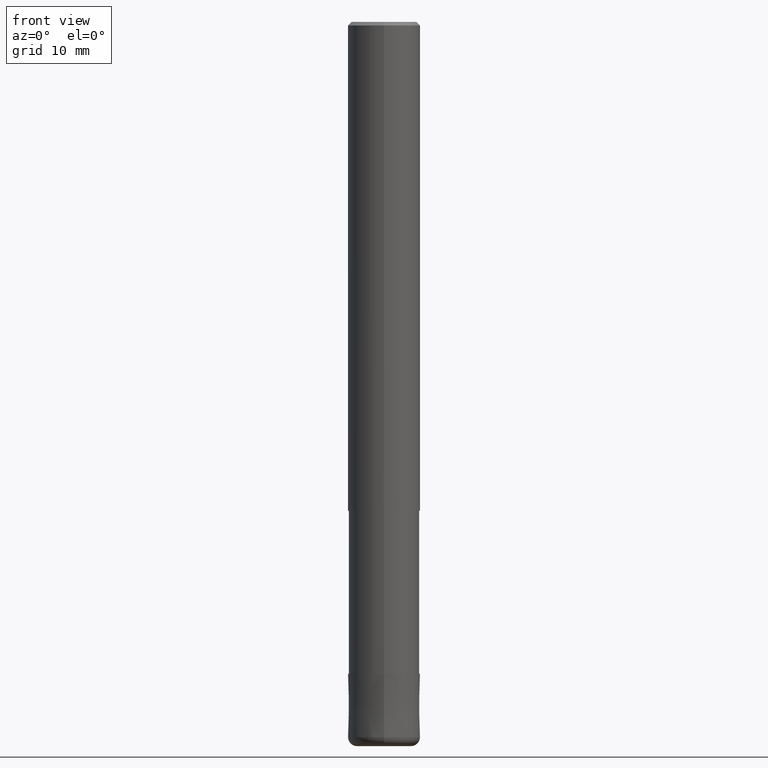
[diagram: clean part render]
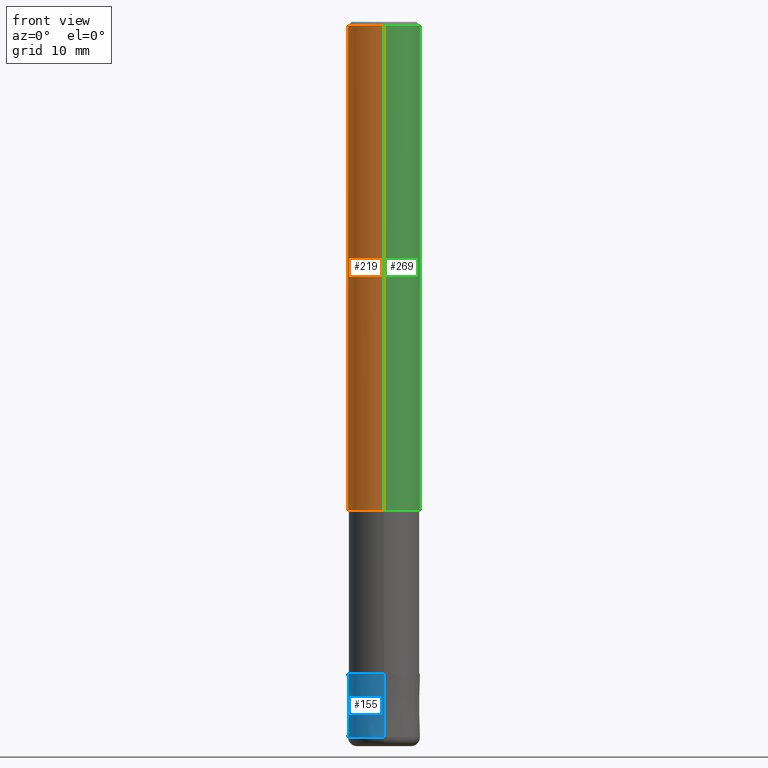
[diagram: same view with three faces highlighted in distinct colors, each labeled with its STEP entity id]
A machine part, front view with three faces highlighted in distinct colors.
Their STEP definitions:

[orange] entity #219 — the highlighted cylindrical surface (edge-blend (fillet) strip) has radius 4 mm, axis along (-0, -0, 1).
#119=EDGE_CURVE('',#235,#221,#306,.T.);
#135=EDGE_CURVE('',#237,#221,#324,.T.);
#161=EDGE_CURVE('',#235,#253,#355,.T.);
#219=ADVANCED_FACE('',(#421),#422,.T.);
#221=VERTEX_POINT('',#424);
#235=VERTEX_POINT('',#441);
#237=VERTEX_POINT('',#443);
#253=VERTEX_POINT('',#459);
#259=EDGE_CURVE('',#253,#237,#465,.T.);
#306=CIRCLE('',#512,4.0);
#324=LINE('',#534,#535);
#355=LINE('',#576,#577);
#421=FACE_OUTER_BOUND('',#657,.T.);
#422=CYLINDRICAL_SURFACE('',#658,4.0);
#424=CARTESIAN_POINT('',(0.0,4.0,-54.0));
#441=CARTESIAN_POINT('',(4.89842541528951E-016,-4.0,-54.0));
#443=CARTESIAN_POINT('',(0.0,4.0,-0.399999999999999));
#459=CARTESIAN_POINT('',(4.89842541528951E-016,-4.0,-0.399999999999999));
#465=CIRCLE('',#711,4.0);
#512=AXIS2_PLACEMENT_3D('',#748,#749,#750);
#534=CARTESIAN_POINT('',(-4.89842541528951E-016,4.0,-27.2));
#535=VECTOR('',#771,1.0);
#576=CARTESIAN_POINT('',(4.89842541528951E-016,-4.0,-27.2));
#577=VECTOR('',#816,1.0);
#657=EDGE_LOOP('',(#903,#904,#905,#906));
#658=AXIS2_PLACEMENT_3D('',#907,#908,#909);
#711=AXIS2_PLACEMENT_3D('',#950,#951,#952);
#748=CARTESIAN_POINT('',(0.0,0.0,-54.0));
#749=DIRECTION('',(0.0,0.0,-1.0));
#750=DIRECTION('',(0.0,1.0,0.0));
#771=DIRECTION('',(0.0,0.0,-1.0));
#816=DIRECTION('',(-0.0,-0.0,1.0));
#903=ORIENTED_EDGE('',*,*,#135,.T.);
#904=ORIENTED_EDGE('',*,*,#119,.F.);
#905=ORIENTED_EDGE('',*,*,#161,.T.);
#906=ORIENTED_EDGE('',*,*,#259,.T.);
#907=CARTESIAN_POINT('',(0.0,0.0,-27.2));
#908=DIRECTION('',(-0.0,-0.0,1.0));
#909=DIRECTION('',(0.0,1.0,0.0));
#950=CARTESIAN_POINT('',(0.0,0.0,-0.399999999999999));
#951=DIRECTION('',(0.0,0.0,-1.0));
#952=DIRECTION('',(0.0,1.0,0.0));

[blue] entity #155 — the highlighted conical surface has half-angle 0.001 deg.
#117=EDGE_CURVE('',#209,#131,#304,.T.);
#123=EDGE_CURVE('',#181,#243,#310,.T.);
#131=VERTEX_POINT('',#319);
#155=ADVANCED_FACE('',(#348),#349,.T.);
#179=EDGE_CURVE('',#243,#209,#376,.T.);
#181=VERTEX_POINT('',#378);
#187=EDGE_CURVE('',#181,#131,#384,.T.);
#209=VERTEX_POINT('',#410);
#243=VERTEX_POINT('',#449);
#304=LINE('',#508,#509);
#310=LINE('',#517,#518);
#319=CARTESIAN_POINT('',(0.0,4.0,-79.0));
#348=FACE_OUTER_BOUND('',#566,.T.);
#349=CONICAL_SURFACE('',#567,3.99995,1.42857142847726E-005);
#376=CIRCLE('',#602,3.9999);
#378=CARTESIAN_POINT('',(4.89842541528951E-016,-4.0,-79.0));
#384=CIRCLE('',#613,4.0);
#410=CARTESIAN_POINT('',(0.0,3.9999,-72.0));
#449=CARTESIAN_POINT('',(4.89830295465413E-016,-3.9999,-72.0));
#508=CARTESIAN_POINT('',(-4.89836418497182E-016,3.99995,-75.5));
#509=VECTOR('',#747,1.0);
#517=CARTESIAN_POINT('',(4.89836418497182E-016,-3.99995,-75.5));
#518=VECTOR('',#751,1.0);
#566=EDGE_LOOP('',(#808,#809,#810,#811));
#567=AXIS2_PLACEMENT_3D('',#812,#813,#814);
#602=AXIS2_PLACEMENT_3D('',#847,#848,#849);
#613=AXIS2_PLACEMENT_3D('',#851,#852,#853);
#747=DIRECTION('',(-1.74943764814286E-021,1.42857142842867E-005,-0.999999999897959));
#751=DIRECTION('',(-1.74943764814286E-021,1.42857142842867E-005,0.999999999897959));
#808=ORIENTED_EDGE('',*,*,#117,.T.);
#809=ORIENTED_EDGE('',*,*,#187,.F.);
#810=ORIENTED_EDGE('',*,*,#123,.T.);
#811=ORIENTED_EDGE('',*,*,#179,.T.);
#812=CARTESIAN_POINT('',(0.0,0.0,-75.5));
#813=DIRECTION('',(0.0,-0.0,-1.0));
#814=DIRECTION('',(0.0,1.0,0.0));
#847=CARTESIAN_POINT('',(0.0,0.0,-72.0));
#848=DIRECTION('',(0.0,0.0,-1.0));
#849=DIRECTION('',(0.0,1.0,0.0));
#851=CARTESIAN_POINT('',(0.0,0.0,-79.0));
#852=DIRECTION('',(0.0,0.0,-1.0));
#853=DIRECTION('',(0.0,1.0,0.0));

[green] entity #269 — the highlighted cylindrical surface (edge-blend (fillet) strip) has radius 4 mm, axis along (-0, -0, 1).
#135=EDGE_CURVE('',#237,#221,#324,.T.);
#151=EDGE_CURVE('',#221,#235,#344,.T.);
#161=EDGE_CURVE('',#235,#253,#355,.T.);
#221=VERTEX_POINT('',#424);
#235=VERTEX_POINT('',#441);
#237=VERTEX_POINT('',#443);
#239=EDGE_CURVE('',#237,#253,#445,.T.);
#253=VERTEX_POINT('',#459);
#269=ADVANCED_FACE('',(#477),#478,.T.);
#324=LINE('',#534,#535);
#344=CIRCLE('',#561,4.0);
#355=LINE('',#576,#577);
#424=CARTESIAN_POINT('',(0.0,4.0,-54.0));
#441=CARTESIAN_POINT('',(4.89842541528951E-016,-4.0,-54.0));
#443=CARTESIAN_POINT('',(0.0,4.0,-0.399999999999999));
#445=CIRCLE('',#686,4.0);
#459=CARTESIAN_POINT('',(4.89842541528951E-016,-4.0,-0.399999999999999));
#477=FACE_OUTER_BOUND('',#726,.T.);
#478=CYLINDRICAL_SURFACE('',#727,4.0);
#534=CARTESIAN_POINT('',(-4.89842541528951E-016,4.0,-27.2));
#535=VECTOR('',#771,1.0);
#561=AXIS2_PLACEMENT_3D('',#801,#802,#803);
#576=CARTESIAN_POINT('',(4.89842541528951E-016,-4.0,-27.2));
#577=VECTOR('',#816,1.0);
#686=AXIS2_PLACEMENT_3D('',#931,#932,#933);
#726=EDGE_LOOP('',(#966,#967,#968,#969));
#727=AXIS2_PLACEMENT_3D('',#970,#971,#972);
#771=DIRECTION('',(0.0,0.0,-1.0));
#801=CARTESIAN_POINT('',(0.0,0.0,-54.0));
#802=DIRECTION('',(0.0,0.0,-1.0));
#803=DIRECTION('',(0.0,1.0,0.0));
#816=DIRECTION('',(-0.0,-0.0,1.0));
#931=CARTESIAN_POINT('',(0.0,0.0,-0.399999999999999));
#932=DIRECTION('',(0.0,0.0,-1.0));
#933=DIRECTION('',(0.0,1.0,0.0));
#966=ORIENTED_EDGE('',*,*,#135,.F.);
#967=ORIENTED_EDGE('',*,*,#239,.T.);
#968=ORIENTED_EDGE('',*,*,#161,.F.);
#969=ORIENTED_EDGE('',*,*,#151,.F.);
#970=CARTESIAN_POINT('',(0.0,0.0,-27.2));
#971=DIRECTION('',(-0.0,-0.0,1.0));
#972=DIRECTION('',(0.0,1.0,0.0));